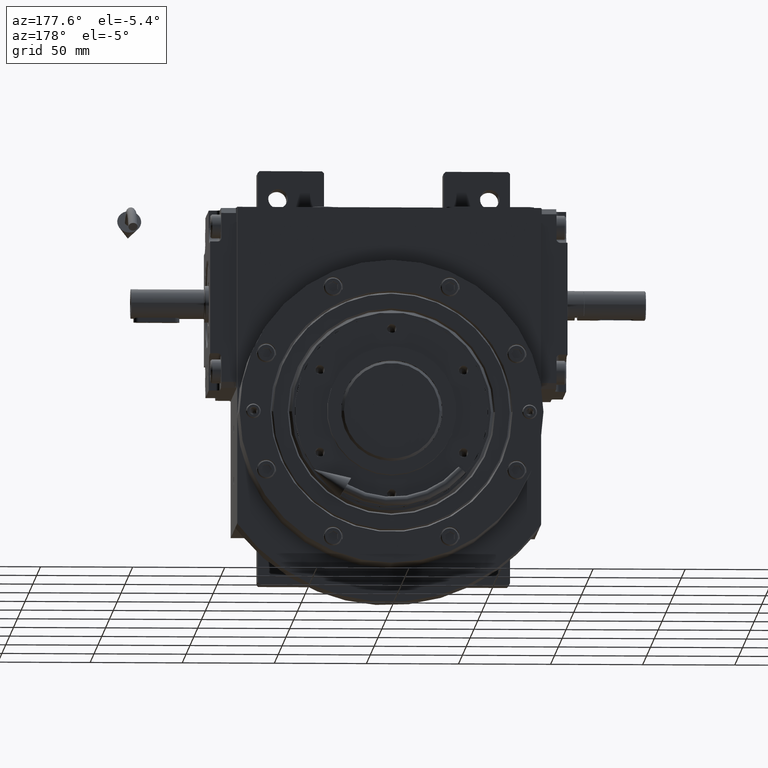
[diagram: clean part render]
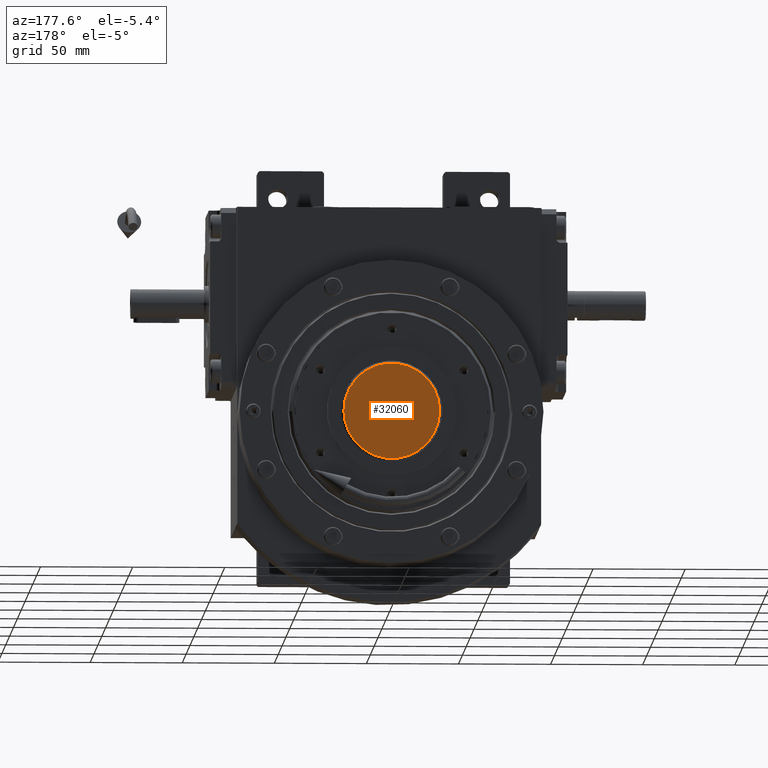
[diagram: same view with one face highlighted and labeled with its STEP entity id]
A machine part, auxiliary view. The second image highlights one B-rep face of the part: STEP entity #32060.
In plain terms, the highlighted planar face has unit normal (-0, -1, 0).
Its self-contained STEP definition (entity closure, byte-faithful):
#4668 = DIRECTION ( 'NONE',  ( -2.049642507000289605E-16, -1.000000000000000000, -9.763650628182529445E-18 ) ) ;
#5537 = CIRCLE ( 'NONE', #54102, 26.00000000000000000 ) ;
#6307 = DIRECTION ( 'NONE',  ( 2.049642507000289605E-16, 1.000000000000000000, -9.763650628182529445E-18 ) ) ;
#6794 = EDGE_CURVE ( 'NONE', #19512, #36165, #47280, .T. ) ;
#9531 = CARTESIAN_POINT ( 'NONE',  ( 1.776356839400249676E-15, 9.999999999999994671, -1.776356839400249676E-15 ) ) ;
#9903 = CARTESIAN_POINT ( 'NONE',  ( -26.00000000000000000, 9.999999999999994671, -2.122721118522079846E-15 ) ) ;
#12871 = DIRECTION ( 'NONE',  ( -1.000000000000000000, 1.836970198721029688E-16, 0.000000000000000000 ) ) ;
#13193 = PLANE ( 'NONE',  #26435 ) ;
#18054 = DIRECTION ( 'NONE',  ( -1.836970198721029688E-16, -1.000000000000000000, 0.000000000000000000 ) ) ;
#19512 = VERTEX_POINT ( 'NONE', #24975 ) ;
#24406 = DIRECTION ( 'NONE',  ( 1.000000000000000000, -2.001604010742469762E-16, 6.832141690000958775E-17 ) ) ;
#24975 = CARTESIAN_POINT ( 'NONE',  ( 26.00000000000000000, 9.999999999999994671, 1.061360559261039923E-15 ) ) ;
#25243 = ORIENTED_EDGE ( 'NONE', *, *, #29938, .F. ) ;
#26435 = AXIS2_PLACEMENT_3D ( 'NONE', #32275, #18054, #12871 ) ;
#29938 = EDGE_CURVE ( 'NONE', #19512, #36165, #5537, .T. ) ;
#31789 = AXIS2_PLACEMENT_3D ( 'NONE', #51227, #6307, #60621 ) ;
#32060 = ADVANCED_FACE ( 'NONE', ( #37137 ), #13193, .F. ) ;
#32275 = CARTESIAN_POINT ( 'NONE',  ( 2.203923359967115520E-18, 9.999999999999994671, 0.000000000000000000 ) ) ;
#36165 = VERTEX_POINT ( 'NONE', #9903 ) ;
#37137 = FACE_OUTER_BOUND ( 'NONE', #39642, .T. ) ;
#39642 = EDGE_LOOP ( 'NONE', ( #25243, #43156 ) ) ;
#43156 = ORIENTED_EDGE ( 'NONE', *, *, #6794, .T. ) ;
#47280 = CIRCLE ( 'NONE', #31789, 26.00000000000000000 ) ;
#51227 = CARTESIAN_POINT ( 'NONE',  ( 1.776356839400249676E-15, 9.999999999999994671, 1.776356839400249676E-15 ) ) ;
#54102 = AXIS2_PLACEMENT_3D ( 'NONE', #9531, #4668, #24406 ) ;
#60621 = DIRECTION ( 'NONE',  ( 1.000000000000000000, -2.001604010742469762E-16, -6.832141690000958775E-17 ) ) ;